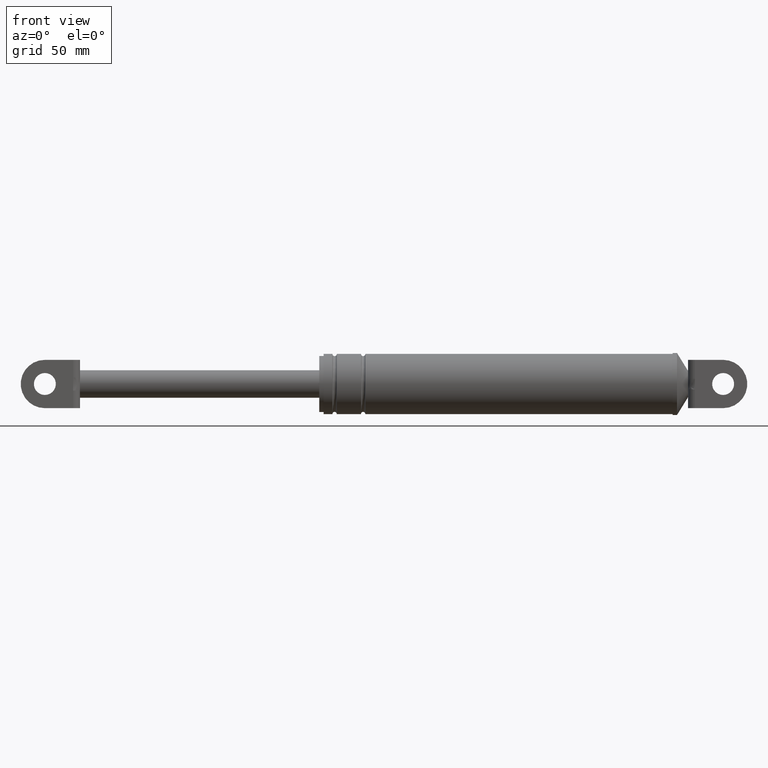
[diagram: clean part render]
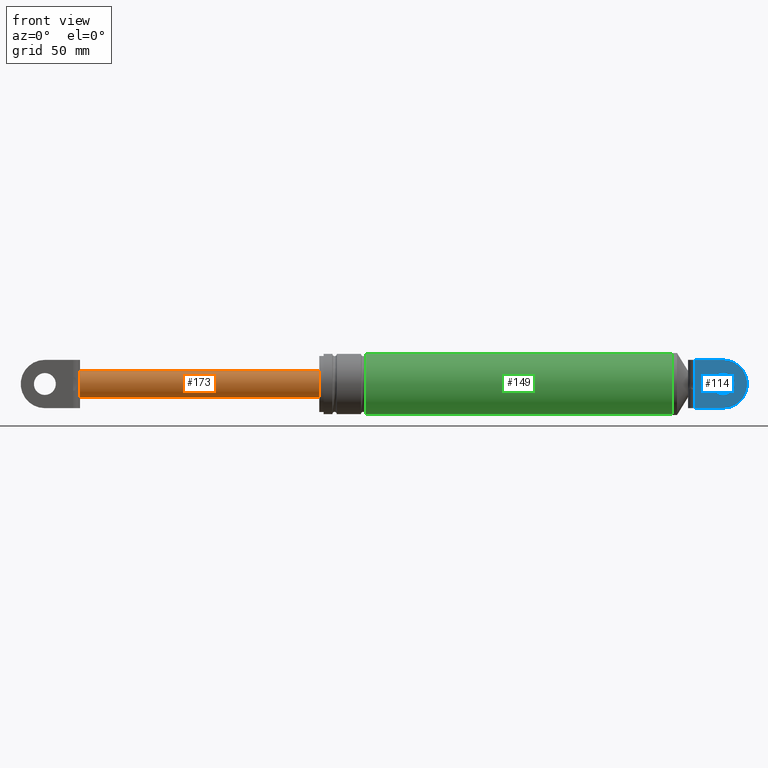
[diagram: same view with three faces highlighted in distinct colors, each labeled with its STEP entity id]
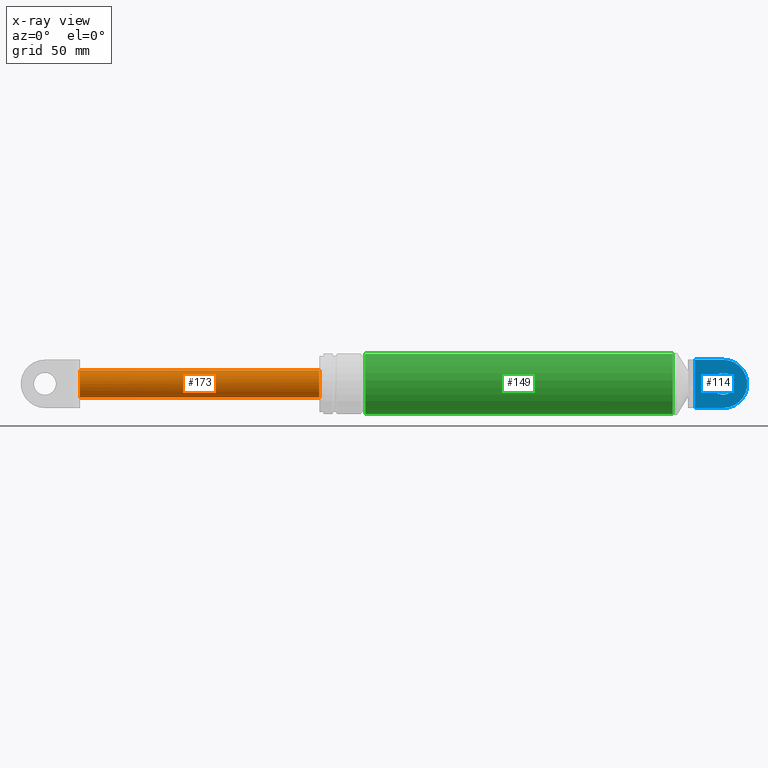
[diagram: x-ray of the same camera — body ghosted, the three highlighted faces saturated]
A machine part, front view with three faces highlighted in distinct colors.
The next image is the same camera in x-ray (body ghosted, the three faces saturated) — at least one of them is partly hidden behind the body in this view.
Their STEP definitions:

[orange] entity #173 — the highlighted cylindrical surface (edge-blend (fillet) strip) has radius 6.25 mm, axis along (1, 0, 0).
#173=ADVANCED_FACE('',(#797),#796,.T.);
#796=CYLINDRICAL_SURFACE('',#1384,6.25000000000E+000);
#797=FACE_OUTER_BOUND('',#1385,.T.);
#1381=CARTESIAN_POINT('',(0.00000000000E+000,0.00000000000E+000,1.79444335058E+002));
#1382=DIRECTION('',(1.00000000000E+000,-0.00000000000E+000,-0.00000000000E+000));
#1383=DIRECTION('',(-0.00000000000E+000,-0.00000000000E+000,-1.00000000000E+000));
#1384=AXIS2_PLACEMENT_3D('',#1381,#1382,#1383);
#1385=EDGE_LOOP('',(#1694,#1695,#1696,#1697,#1698,#1699));
#1694=ORIENTED_EDGE('',*,*,#1832,.F.);
#1695=ORIENTED_EDGE('',*,*,#1811,.F.);
#1696=ORIENTED_EDGE('',*,*,#1842,.F.);
#1697=ORIENTED_EDGE('',*,*,#1860,.T.);
#1698=ORIENTED_EDGE('',*,*,#1852,.T.);
#1699=ORIENTED_EDGE('',*,*,#1861,.F.);
#1811=EDGE_CURVE('',#2542,#2549,#2550,.T.);
#1832=EDGE_CURVE('',#2549,#2691,#2692,.T.);
#1842=EDGE_CURVE('',#2752,#2542,#2759,.T.);
#1852=EDGE_CURVE('',#2822,#2823,#2824,.T.);
#1860=EDGE_CURVE('',#2752,#2822,#2874,.T.);
#1861=EDGE_CURVE('',#2691,#2823,#2880,.T.);
#2542=VERTEX_POINT('',#3336);
#2549=VERTEX_POINT('',#3341);
#2550=CIRCLE('',#3345,6.25000000000E+000);
#2691=VERTEX_POINT('',#3438);
#2692=CIRCLE('',#3442,6.25000000000E+000);
#2752=VERTEX_POINT('',#3477);
#2759=CIRCLE('',#3485,6.25000000000E+000);
#2822=VERTEX_POINT('',#3517);
#2823=VERTEX_POINT('',#3518);
#2824=CIRCLE('',#3522,6.25000000000E+000);
#2874=(BOUNDED_CURVE() B_SPLINE_CURVE(1,(#3548,#3549),.UNSPECIFIED.,.F.,.F.) B_SPLINE_CURVE_WITH_KNOTS((2,2),(7.75193799282E-002,9.22480620316E-001),.UNSPECIFIED.) CURVE() GEOMETRIC_REPRESENTATION_ITEM() RATIONAL_B_SPLINE_CURVE((1.00000000000E+000,1.00000000000E+000)) REPRESENTATION_ITEM('') );
#2880=(BOUNDED_CURVE() B_SPLINE_CURVE(1,(#3550,#3551),.UNSPECIFIED.,.F.,.F.) B_SPLINE_CURVE_WITH_KNOTS((2,2),(7.75193798450E-002,9.22480620155E-001),.UNSPECIFIED.) CURVE() GEOMETRIC_REPRESENTATION_ITEM() RATIONAL_B_SPLINE_CURVE((7.50000000000E-001,7.50000000000E-001)) REPRESENTATION_ITEM('') );
#3336=CARTESIAN_POINT('',(8.22751961537E+001,-5.49999700000E+000,1.76475743978E+002));
#3341=CARTESIAN_POINT('',(8.22751961537E+001,-5.49999700000E+000,1.82412926138E+002));
#3342=CARTESIAN_POINT('',(8.22751961537E+001,0.00000000000E+000,1.79444335058E+002));
#3343=DIRECTION('',(-1.00000000000E+000,0.00000000000E+000,0.00000000000E+000));
#3344=DIRECTION('',(-0.00000000000E+000,-0.00000000000E+000,-1.00000000000E+000));
#3345=AXIS2_PLACEMENT_3D('',#3342,#3343,#3344);
#3438=CARTESIAN_POINT('',(8.22751961537E+001,7.89135251068E-007,1.85694335058E+002));
#3439=CARTESIAN_POINT('',(8.22751961537E+001,0.00000000000E+000,1.79444335058E+002));
#3440=DIRECTION('',(-1.00000000000E+000,0.00000000000E+000,0.00000000000E+000));
#3441=DIRECTION('',(-0.00000000000E+000,-0.00000000000E+000,-1.00000000000E+000));
#3442=AXIS2_PLACEMENT_3D('',#3439,#3440,#3441);
#3477=CARTESIAN_POINT('',(8.22751961537E+001,-4.27274026132E-012,1.73194335058E+002));
#3482=CARTESIAN_POINT('',(8.22751961537E+001,0.00000000000E+000,1.79444335058E+002));
#3483=DIRECTION('',(-1.00000000000E+000,0.00000000000E+000,0.00000000000E+000));
#3484=DIRECTION('',(-0.00000000000E+000,8.79999520000E-001,-4.74974572793E-001));
#3485=AXIS2_PLACEMENT_3D('',#3482,#3483,#3484);
#3517=CARTESIAN_POINT('',(1.91275196154E+002,0.00000000000E+000,1.73194335058E+002));
#3518=CARTESIAN_POINT('',(1.91275196154E+002,0.00000000000E+000,1.85694335058E+002));
#3519=CARTESIAN_POINT('',(1.91275196154E+002,0.00000000000E+000,1.79444335058E+002));
#3520=DIRECTION('',(-1.00000000000E+000,0.00000000000E+000,0.00000000000E+000));
#3521=DIRECTION('',(0.00000000000E+000,-1.22460635382E-016,1.00000000000E+000));
#3522=AXIS2_PLACEMENT_3D('',#3519,#3520,#3521);
#3548=CARTESIAN_POINT('',(8.22751961644E+001,0.00000000000E+000,1.73194335058E+002));
#3549=CARTESIAN_POINT('',(1.91275196174E+002,0.00000000000E+000,1.73194335058E+002));
#3550=CARTESIAN_POINT('',(8.22751961537E+001,0.00000000000E+000,1.85694335058E+002));
#3551=CARTESIAN_POINT('',(1.91275196154E+002,0.00000000000E+000,1.85694335058E+002));

[blue] entity #114 — the highlighted planar face has unit normal (0, 1, 0).
#114=ADVANCED_FACE('',(#197,#198),#196,.F.);
#196=PLANE('',#891);
#197=FACE_OUTER_BOUND('',#892,.T.);
#198=FACE_BOUND('',#893,.T.);
#888=CARTESIAN_POINT('',(3.60051956430E+002,-8.69999700000E+000,1.66244333906E+002));
#889=DIRECTION('',(0.00000000000E+000,1.00000000000E+000,0.00000000000E+000));
#890=DIRECTION('',(0.00000000000E+000,0.00000000000E+000,1.00000000000E+000));
#891=AXIS2_PLACEMENT_3D('',#888,#889,#890);
#892=EDGE_LOOP('',(#1404,#1405,#1406,#1407,#1408,#1409));
#893=EDGE_LOOP('',(#1410,#1411));
#1404=ORIENTED_EDGE('',*,*,#1716,.F.);
#1405=ORIENTED_EDGE('',*,*,#1717,.T.);
#1406=ORIENTED_EDGE('',*,*,#1713,.T.);
#1407=ORIENTED_EDGE('',*,*,#1718,.T.);
#1408=ORIENTED_EDGE('',*,*,#1719,.T.);
#1409=ORIENTED_EDGE('',*,*,#1720,.T.);
#1410=ORIENTED_EDGE('',*,*,#1721,.F.);
#1411=ORIENTED_EDGE('',*,*,#1722,.F.);
#1713=EDGE_CURVE('',#1900,#1893,#1901,.T.);
#1716=EDGE_CURVE('',#1920,#1921,#1922,.T.);
#1717=EDGE_CURVE('',#1920,#1900,#1928,.T.);
#1718=EDGE_CURVE('',#1893,#1934,#1935,.T.);
#1719=EDGE_CURVE('',#1934,#1941,#1942,.T.);
#1720=EDGE_CURVE('',#1941,#1921,#1948,.T.);
#1721=EDGE_CURVE('',#1954,#1955,#1956,.T.);
#1722=EDGE_CURVE('',#1955,#1954,#1962,.T.);
#1893=VERTEX_POINT('',#2925);
#1900=VERTEX_POINT('',#2930);
#1901=(BOUNDED_CURVE() B_SPLINE_CURVE(3,(#2931,#2932,#2933,#2934,#2935,#2936,#2937,#2938,#2939,#2940),.UNSPECIFIED.,.F.,.F.) B_SPLINE_CURVE_WITH_KNOTS((4,2,2,2,4),(0.00000000000E+000,1.19890467989E-003,2.39780935978E-003,3.59671403966E-003,4.79561871955E-003),.UNSPECIFIED.) CURVE() GEOMETRIC_REPRESENTATION_ITEM() RATIONAL_B_SPLINE_CURVE((1.00000000000E+000,1.00000000000E+000,1.00000000000E+000,1.00000000000E+000,1.00000000000E+000,1.00000000000E+000,1.00000000000E+000,1.00000000000E+000,1.00000000000E+000,1.00000000000E+000)) REPRESENTATION_ITEM('') );
#1920=VERTEX_POINT('',#2950);
#1921=VERTEX_POINT('',#2951);
#1922=LINE('',#2952,#2953);
#1928=LINE('',#2955,#2956);
#1934=VERTEX_POINT('',#2958);
#1935=LINE('',#2959,#2960);
#1941=VERTEX_POINT('',#2962);
#1942=LINE('',#2963,#2964);
#1948=CIRCLE('',#2969,1.10000000000E+001);
#1954=VERTEX_POINT('',#2970);
#1955=VERTEX_POINT('',#2971);
#1956=CIRCLE('',#2975,5.00000000000E+000);
#1962=CIRCLE('',#2979,5.00000000000E+000);
#2925=CARTESIAN_POINT('',(3.62475196154E+002,-8.69999700000E+000,1.77046412416E+002));
#2930=CARTESIAN_POINT('',(3.62475196154E+002,-8.69999700000E+000,1.81842257701E+002));
#2931=CARTESIAN_POINT('',(3.62475196154E+002,-8.69999700000E+000,1.81842257701E+002));
#2932=CARTESIAN_POINT('',(3.62475196154E+002,-8.69999700000E+000,1.81442601615E+002));
#2933=CARTESIAN_POINT('',(3.62463570809E+002,-8.69999700000E+000,1.81043065255E+002));
#2934=CARTESIAN_POINT('',(3.62443711882E+002,-8.69999700000E+000,1.80243957604E+002));
#2935=CARTESIAN_POINT('',(3.62435896301E+002,-8.69999700000E+000,1.79844382009E+002));
#2936=CARTESIAN_POINT('',(3.62435887314E+002,-8.69999700000E+000,1.79045069929E+002));
#2937=CARTESIAN_POINT('',(3.62443697986E+002,-8.69999700000E+000,1.78645311722E+002));
#2938=CARTESIAN_POINT('',(3.62463561458E+002,-8.69999700000E+000,1.77845941123E+002));
#2939=CARTESIAN_POINT('',(3.62475196154E+002,-8.69999700000E+000,1.77446288544E+002));
#2940=CARTESIAN_POINT('',(3.62475196154E+002,-8.69999700000E+000,1.77046412416E+002));
#2950=CARTESIAN_POINT('',(3.62475196154E+002,-8.69999700000E+000,1.90444335058E+002));
#2951=CARTESIAN_POINT('',(3.75275195194E+002,-8.69999700000E+000,1.90444335058E+002));
#2952=CARTESIAN_POINT('',(3.62475196154E+002,-8.69999700000E+000,1.90444335058E+002));
#2953=VECTOR('',#2954,1.27999990401E+001);
#2954=DIRECTION('',(1.00000000000E+000,0.00000000000E+000,0.00000000000E+000));
#2955=CARTESIAN_POINT('',(3.62475196154E+002,-8.69999700000E+000,1.90444335058E+002));
#2956=VECTOR('',#2957,8.60207735738E+000);
#2957=DIRECTION('',(0.00000000000E+000,0.00000000000E+000,-1.00000000000E+000));
#2958=CARTESIAN_POINT('',(3.62475196154E+002,-8.69999700000E+000,1.68444335058E+002));
#2959=CARTESIAN_POINT('',(3.62475196154E+002,-8.69999700000E+000,1.77046412416E+002));
#2960=VECTOR('',#2961,8.60207735738E+000);
#2961=DIRECTION('',(0.00000000000E+000,0.00000000000E+000,-1.00000000000E+000));
#2962=CARTESIAN_POINT('',(3.75275195194E+002,-8.69999700000E+000,1.68444335058E+002));
#2963=CARTESIAN_POINT('',(3.62475196154E+002,-8.69999700000E+000,1.68444335058E+002));
#2964=VECTOR('',#2965,1.27999990401E+001);
#2965=DIRECTION('',(1.00000000000E+000,0.00000000000E+000,0.00000000000E+000));
#2966=CARTESIAN_POINT('',(3.75275196154E+002,-8.69999700000E+000,1.79444335058E+002));
#2967=DIRECTION('',(-0.00000000000E+000,-1.00000000000E+000,0.00000000000E+000));
#2968=DIRECTION('',(-8.72664517201E-008,0.00000000000E+000,1.00000000000E+000));
#2969=AXIS2_PLACEMENT_3D('',#2966,#2967,#2968);
#2970=CARTESIAN_POINT('',(3.75275196154E+002,-8.69999700000E+000,1.74444335058E+002));
#2971=CARTESIAN_POINT('',(3.75275196154E+002,-8.69999700000E+000,1.84444335058E+002));
#2972=CARTESIAN_POINT('',(3.75275196154E+002,-8.69999700000E+000,1.79444335058E+002));
#2973=DIRECTION('',(-0.00000000000E+000,-1.00000000000E+000,0.00000000000E+000));
#2974=DIRECTION('',(-1.22460635382E-016,0.00000000000E+000,1.00000000000E+000));
#2975=AXIS2_PLACEMENT_3D('',#2972,#2973,#2974);
#2976=CARTESIAN_POINT('',(3.75275196154E+002,-8.69999700000E+000,1.79444335058E+002));
#2977=DIRECTION('',(-0.00000000000E+000,-1.00000000000E+000,0.00000000000E+000));
#2978=DIRECTION('',(-1.22460635382E-016,0.00000000000E+000,1.00000000000E+000));
#2979=AXIS2_PLACEMENT_3D('',#2976,#2977,#2978);

[green] entity #149 — the highlighted cylindrical surface (edge-blend (fillet) strip) has radius 13.7 mm, axis along (1, 0, 0).
#149=ADVANCED_FACE('',(#553),#552,.T.);
#552=CYLINDRICAL_SURFACE('',#1208,1.37000000000E+001);
#553=FACE_OUTER_BOUND('',#1209,.T.);
#1205=CARTESIAN_POINT('',(0.00000000000E+000,0.00000000000E+000,1.79444335058E+002));
#1206=DIRECTION('',(1.00000000000E+000,-0.00000000000E+000,-0.00000000000E+000));
#1207=DIRECTION('',(-0.00000000000E+000,-0.00000000000E+000,-1.00000000000E+000));
#1208=AXIS2_PLACEMENT_3D('',#1205,#1206,#1207);
#1209=EDGE_LOOP('',(#1572,#1573,#1574,#1575));
#1572=ORIENTED_EDGE('',*,*,#1791,.F.);
#1573=ORIENTED_EDGE('',*,*,#1798,.T.);
#1574=ORIENTED_EDGE('',*,*,#1768,.T.);
#1575=ORIENTED_EDGE('',*,*,#1799,.F.);
#1768=EDGE_CURVE('',#2268,#2269,#2270,.T.);
#1791=EDGE_CURVE('',#2385,#2384,#2418,.T.);
#1798=EDGE_CURVE('',#2385,#2268,#2462,.T.);
#1799=EDGE_CURVE('',#2384,#2269,#2468,.T.);
#2268=VERTEX_POINT('',#3168);
#2269=VERTEX_POINT('',#3169);
#2270=CIRCLE('',#3173,1.37000000000E+001);
#2384=VERTEX_POINT('',#3236);
#2385=VERTEX_POINT('',#3237);
#2418=CIRCLE('',#3267,1.37000000000E+001);
#2462=(BOUNDED_CURVE() B_SPLINE_CURVE(1,(#3286,#3287),.UNSPECIFIED.,.F.,.F.) B_SPLINE_CURVE_WITH_KNOTS((2,2),(6.25000001860E-002,9.37500000071E-001),.UNSPECIFIED.) CURVE() GEOMETRIC_REPRESENTATION_ITEM() RATIONAL_B_SPLINE_CURVE((1.00000000000E+000,1.00000000000E+000)) REPRESENTATION_ITEM('') );
#2468=(BOUNDED_CURVE() B_SPLINE_CURVE(1,(#3288,#3289),.UNSPECIFIED.,.F.,.F.) B_SPLINE_CURVE_WITH_KNOTS((2,2),(6.25000000000E-002,9.37500000000E-001),.UNSPECIFIED.) CURVE() GEOMETRIC_REPRESENTATION_ITEM() RATIONAL_B_SPLINE_CURVE((7.50000000000E-001,7.50000000000E-001)) REPRESENTATION_ITEM('') );
#3168=CARTESIAN_POINT('',(3.52275196154E+002,0.00000000000E+000,1.65744335058E+002));
#3169=CARTESIAN_POINT('',(3.52275196154E+002,0.00000000000E+000,1.93144335058E+002));
#3170=CARTESIAN_POINT('',(3.52275196154E+002,0.00000000000E+000,1.79444335058E+002));
#3171=DIRECTION('',(-1.00000000000E+000,0.00000000000E+000,0.00000000000E+000));
#3172=DIRECTION('',(0.00000000000E+000,-1.22460635382E-016,1.00000000000E+000));
#3173=AXIS2_PLACEMENT_3D('',#3170,#3171,#3172);
#3236=CARTESIAN_POINT('',(2.12275196154E+002,0.00000000000E+000,1.93144335058E+002));
#3237=CARTESIAN_POINT('',(2.12275196154E+002,0.00000000000E+000,1.65744335058E+002));
#3264=CARTESIAN_POINT('',(2.12275196154E+002,0.00000000000E+000,1.79444335058E+002));
#3265=DIRECTION('',(-1.00000000000E+000,0.00000000000E+000,0.00000000000E+000));
#3266=DIRECTION('',(0.00000000000E+000,-1.22460635382E-016,1.00000000000E+000));
#3267=AXIS2_PLACEMENT_3D('',#3264,#3265,#3266);
#3286=CARTESIAN_POINT('',(2.12275196183E+002,0.00000000000E+000,1.65744335058E+002));
#3287=CARTESIAN_POINT('',(3.52275196165E+002,0.00000000000E+000,1.65744335058E+002));
#3288=CARTESIAN_POINT('',(2.12275196154E+002,-5.92118946467E-016,1.93144335058E+002));
#3289=CARTESIAN_POINT('',(3.52275196154E+002,-5.92118946467E-016,1.93144335058E+002));